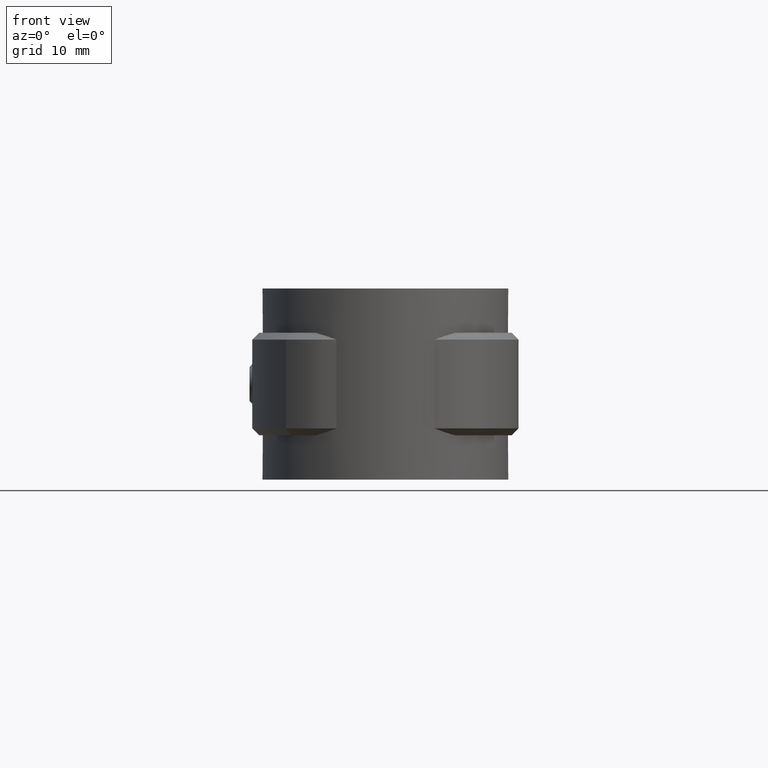
[diagram: clean part render]
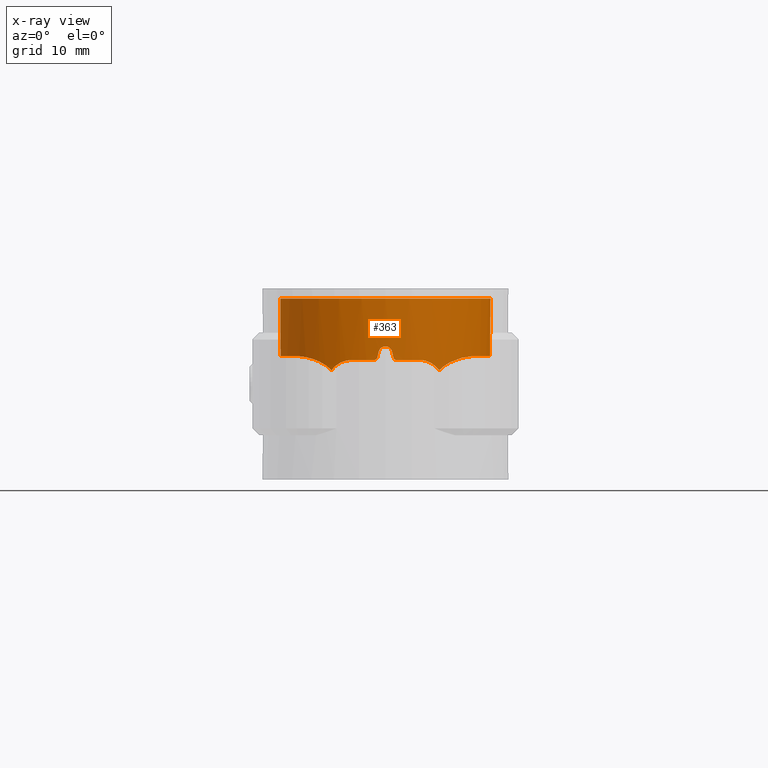
[diagram: x-ray — body ghosted, one internal face saturated and labeled with its STEP entity id]
A machine part, front view, then the same camera in x-ray: the body is ghosted and one INTERNAL B-rep face — a face not visible from any outside direction — is saturated and labeled: STEP entity #363.
In plain terms, the highlighted cylindrical surface (partial cylindrical patch) has radius 15.4 mm, axis along (0, 0, 1).
Its self-contained STEP definition (entity closure, byte-faithful):
#363 = ADVANCED_FACE( '', ( #689 ), #690, .T. );
#689 = FACE_OUTER_BOUND( '', #1386, .T. );
#690 = CYLINDRICAL_SURFACE( '', #1387, 15.4000000000000 );
#1386 = EDGE_LOOP( '', ( #2599, #2600, #2601, #2602, #2603, #2604, #2605, #2606, #2607, #2608, #2609, #2610, #2611, #2612, #2613, #2614 ) );
#1387 = AXIS2_PLACEMENT_3D( '', #2615, #2616, #2617 );
#2599 = ORIENTED_EDGE( '', *, *, #5970, .F. );
#2600 = ORIENTED_EDGE( '', *, *, #5971, .F. );
#2601 = ORIENTED_EDGE( '', *, *, #5972, .F. );
#2602 = ORIENTED_EDGE( '', *, *, #5973, .F. );
#2603 = ORIENTED_EDGE( '', *, *, #5974, .F. );
#2604 = ORIENTED_EDGE( '', *, *, #5975, .T. );
#2605 = ORIENTED_EDGE( '', *, *, #5976, .F. );
#2606 = ORIENTED_EDGE( '', *, *, #5977, .F. );
#2607 = ORIENTED_EDGE( '', *, *, #5978, .F. );
#2608 = ORIENTED_EDGE( '', *, *, #5979, .F. );
#2609 = ORIENTED_EDGE( '', *, *, #5980, .F. );
#2610 = ORIENTED_EDGE( '', *, *, #5981, .F. );
#2611 = ORIENTED_EDGE( '', *, *, #5982, .F. );
#2612 = ORIENTED_EDGE( '', *, *, #5983, .F. );
#2613 = ORIENTED_EDGE( '', *, *, #5984, .F. );
#2614 = ORIENTED_EDGE( '', *, *, #5985, .F. );
#2615 = CARTESIAN_POINT( '', ( 0.000000000000000, 0.000000000000000, 0.000000000000000 ) );
#2616 = DIRECTION( '', ( 0.000000000000000, 0.000000000000000, 1.00000000000000 ) );
#2617 = DIRECTION( '', ( 1.00000000000000, -6.12303176911189E-017, 0.000000000000000 ) );
#5970 = EDGE_CURVE( '', #6879, #6880, #6881, .T. );
#5971 = EDGE_CURVE( '', #6882, #6879, #6883, .T. );
#5972 = EDGE_CURVE( '', #6884, #6882, #6885, .T. );
#5973 = EDGE_CURVE( '', #6886, #6884, #6887, .T. );
#5974 = EDGE_CURVE( '', #6888, #6886, #6889, .F. );
#5975 = EDGE_CURVE( '', #6888, #6890, #6891, .T. );
#5976 = EDGE_CURVE( '', #6892, #6890, #6893, .T. );
#5977 = EDGE_CURVE( '', #6894, #6892, #6895, .T. );
#5978 = EDGE_CURVE( '', #6896, #6894, #6897, .T. );
#5979 = EDGE_CURVE( '', #6898, #6896, #6899, .T. );
#5980 = EDGE_CURVE( '', #6900, #6898, #6901, .T. );
#5981 = EDGE_CURVE( '', #6902, #6900, #6903, .T. );
#5982 = EDGE_CURVE( '', #6904, #6902, #6905, .T. );
#5983 = EDGE_CURVE( '', #6906, #6904, #6907, .T. );
#5984 = EDGE_CURVE( '', #6908, #6906, #6909, .T. );
#5985 = EDGE_CURVE( '', #6880, #6908, #6910, .T. );
#6879 = VERTEX_POINT( '', #8393 );
#6880 = VERTEX_POINT( '', #8394 );
#6881 = B_SPLINE_CURVE_WITH_KNOTS( '', 3, ( #8395, #8396, #8397, #8398, #8399, #8400, #8401, #8402, #8403, #8404 ), .UNSPECIFIED., .F., .F., ( 4, 2, 2, 2, 4 ), ( 0.00791598964132195, 0.00881788409759061, 0.00971977855385927, 0.0106216730101279, 0.0115235674663966 ), .UNSPECIFIED. );
#6882 = VERTEX_POINT( '', #8405 );
#6883 = B_SPLINE_CURVE_WITH_KNOTS( '', 3, ( #8406, #8407, #8408, #8409, #8410, #8411, #8412, #8413, #8414, #8415, #8416, #8417, #8418, #8419 ), .UNSPECIFIED., .F., .F., ( 4, 2, 2, 2, 2, 2, 4 ), ( 0.000000000000000, 0.00173168273084340, 0.00346336546168679, 0.00432920682710849, 0.00519504819253019, 0.00606088955795189, 0.00692673092337359 ), .UNSPECIFIED. );
#6884 = VERTEX_POINT( '', #8420 );
#6885 = B_SPLINE_CURVE_WITH_KNOTS( '', 3, ( #8421, #8422, #8423, #8424, #8425, #8426, #8427, #8428, #8429, #8430, #8431, #8432, #8433, #8434, #8435, #8436, #8437, #8438, #8439, #8440, #8441, #8442, #8443, #8444, #8445, #8446, #8447, #8448 ), .UNSPECIFIED., .F., .F., ( 4, 2, 2, 2, 2, 2, 2, 2, 2, 2, 2, 2, 2, 4 ), ( 0.000000000000000, 0.00341998212533285, 0.00512997318799927, 0.00683996425066569, 0.00854995531333212, 0.0102599463759985, 0.0136799285013314, 0.0153899195639978, 0.0170999106266642, 0.0188099016893306, 0.0205198927519971, 0.0239398748773299, 0.0256498659399963, 0.0273598570026628 ), .UNSPECIFIED. );
#6886 = VERTEX_POINT( '', #8449 );
#6887 = LINE( '', #8450, #8451 );
#6888 = VERTEX_POINT( '', #8452 );
#6889 = CIRCLE( '', #8453, 15.4000000000000 );
#6890 = VERTEX_POINT( '', #8454 );
#6891 = LINE( '', #8455, #8456 );
#6892 = VERTEX_POINT( '', #8457 );
#6893 = B_SPLINE_CURVE_WITH_KNOTS( '', 3, ( #8458, #8459, #8460, #8461, #8462, #8463, #8464, #8465, #8466, #8467, #8468, #8469, #8470, #8471, #8472, #8473, #8474, #8475, #8476, #8477, #8478, #8479, #8480, #8481, #8482, #8483, #8484, #8485 ), .UNSPECIFIED., .F., .F., ( 4, 2, 2, 2, 2, 2, 2, 2, 2, 2, 2, 2, 2, 4 ), ( 0.000000000000000, 0.00341998115958763, 0.00512997173938145, 0.00683996231917526, 0.00854995289896908, 0.0102599434787629, 0.0136799246383505, 0.0153899152181443, 0.0170999057979382, 0.0188098963777320, 0.0205198869575258, 0.0239398681171134, 0.0256498586969072, 0.0273598492767011 ), .UNSPECIFIED. );
#6894 = VERTEX_POINT( '', #8486 );
#6895 = B_SPLINE_CURVE_WITH_KNOTS( '', 3, ( #8487, #8488, #8489, #8490, #8491, #8492, #8493, #8494, #8495, #8496, #8497, #8498, #8499, #8500, #8501, #8502 ), .UNSPECIFIED., .F., .F., ( 4, 2, 2, 2, 2, 2, 2, 4 ), ( 0.0114627749049259, 0.0123276574817837, 0.0131925400586416, 0.0140574226354994, 0.0149223052123572, 0.0157871877892150, 0.0166520703660729, 0.0183818355197885 ), .UNSPECIFIED. );
#6896 = VERTEX_POINT( '', #8503 );
#6897 = B_SPLINE_CURVE_WITH_KNOTS( '', 3, ( #8504, #8505, #8506, #8507, #8508, #8509, #8510, #8511, #8512, #8513, #8514, #8515, #8516, #8517 ), .UNSPECIFIED., .F., .F., ( 4, 2, 2, 2, 2, 2, 4 ), ( 0.0111031675554028, 0.0115550570221312, 0.0120069464888597, 0.0129107254223165, 0.0138145043557733, 0.0142663938225017, 0.0147182832892301 ), .UNSPECIFIED. );
#6898 = VERTEX_POINT( '', #8518 );
#6899 = CIRCLE( '', #8519, 15.4000000000000 );
#6900 = VERTEX_POINT( '', #8520 );
#6901 = B_SPLINE_CURVE_WITH_KNOTS( '', 3, ( #8521, #8522, #8523, #8524, #8525, #8526 ), .UNSPECIFIED., .F., .F., ( 4, 2, 4 ), ( 0.00246264158216461, 0.00279888070868524, 0.00313511983520587 ), .UNSPECIFIED. );
#6902 = VERTEX_POINT( '', #8527 );
#6903 = ELLIPSE( '', #8528, 70.1556271315222, 15.4000000000000 );
#6904 = VERTEX_POINT( '', #8529 );
#6905 = B_SPLINE_CURVE_WITH_KNOTS( '', 3, ( #8530, #8531, #8532, #8533, #8534, #8535, #8536, #8537, #8538, #8539 ), .UNSPECIFIED., .F., .F., ( 4, 2, 2, 2, 4 ), ( 0.00178378666666278, 0.00245553190625587, 0.00312727714584896, 0.00379902238544205, 0.00447076762503513 ), .UNSPECIFIED. );
#6906 = VERTEX_POINT( '', #8540 );
#6907 = ELLIPSE( '', #8541, 70.1555913435267, 15.4000000000000 );
#6908 = VERTEX_POINT( '', #8542 );
#6909 = B_SPLINE_CURVE_WITH_KNOTS( '', 3, ( #8543, #8544, #8545, #8546, #8547, #8548 ), .UNSPECIFIED., .F., .F., ( 4, 2, 4 ), ( 0.000000000000000, 0.000336650316676344, 0.000673300633352688 ), .UNSPECIFIED. );
#6910 = CIRCLE( '', #8549, 15.4000000000000 );
#8393 = CARTESIAN_POINT( '', ( 7.87700636388655, -13.2330182023337, -10.5068029745768 ) );
#8394 = CARTESIAN_POINT( '', ( 5.00000000000000, -14.5657131648265, -9.00000000000000 ) );
#8395 = CARTESIAN_POINT( '', ( 7.87700636388652, -13.2330182023336, -10.5068029745767 ) );
#8396 = CARTESIAN_POINT( '', ( 7.71363110740018, -13.3302679691946, -10.2709850164835 ) );
#8397 = CARTESIAN_POINT( '', ( 7.52220537404209, -13.4399923453092, -10.0573023067330 ) );
#8398 = CARTESIAN_POINT( '', ( 7.10208840770406, -13.6666494862637, -9.68761377194824 ) );
#8399 = CARTESIAN_POINT( '', ( 6.86847156540302, -13.7861790864375, -9.52741114921785 ) );
#8400 = CARTESIAN_POINT( '', ( 6.37517207682076, -14.0211203703200, -9.26946254848415 ) );
#8401 = CARTESIAN_POINT( '', ( 6.11532449262093, -14.1368542315247, -9.17045578740684 ) );
#8402 = CARTESIAN_POINT( '', ( 5.56685684432593, -14.3616832609624, -9.03467365093940 ) );
#8403 = CARTESIAN_POINT( '', ( 5.28428559890868, -14.4681259077895, -8.99999999999998 ) );
#8404 = CARTESIAN_POINT( '', ( 5.00000000000000, -14.5657131648265, -8.99999999999997 ) );
#8405 = CARTESIAN_POINT( '', ( 12.6274120051663, -8.81524055552550, -8.45123182622543 ) );
#8406 = CARTESIAN_POINT( '', ( 12.6274120051663, -8.81524055552550, -8.45123182622543 ) );
#8407 = CARTESIAN_POINT( '', ( 12.2921835087103, -9.29543940137202, -8.46640589875318 ) );
#8408 = CARTESIAN_POINT( '', ( 11.9345917271948, -9.74949266599847, -8.51214687201750 ) );
#8409 = CARTESIAN_POINT( '', ( 11.1785738592952, -10.6078543264634, -8.66934439407290 ) );
#8410 = CARTESIAN_POINT( '', ( 10.7801391596403, -11.0120804295089, -8.78116952376868 ) );
#8411 = CARTESIAN_POINT( '', ( 10.1551330611052, -11.5806995226116, -9.01465162548256 ) );
#8412 = CARTESIAN_POINT( '', ( 9.94253435288115, -11.7635399192514, -9.10364407148822 ) );
#8413 = CARTESIAN_POINT( '', ( 9.51839311645741, -12.1092961509172, -9.30489986919365 ) );
#8414 = CARTESIAN_POINT( '', ( 9.30582768364358, -12.2731543091292, -9.41742948314349 ) );
#8415 = CARTESIAN_POINT( '', ( 8.88264050815757, -12.5828233388298, -9.67168894022724 ) );
#8416 = CARTESIAN_POINT( '', ( 8.67068931918931, -12.7294751156650, -9.81433545969121 ) );
#8417 = CARTESIAN_POINT( '', ( 8.26011978492007, -12.9996465770809, -10.1336652816724 ) );
#8418 = CARTESIAN_POINT( '', ( 8.06230731954148, -13.1227170764218, -10.3093051029673 ) );
#8419 = CARTESIAN_POINT( '', ( 7.87700636388627, -13.2330182023337, -10.5068029745765 ) );
#8420 = CARTESIAN_POINT( '', ( 5.95833333333334, 14.2006430801175, -8.45319646491126 ) );
#8421 = CARTESIAN_POINT( '', ( 5.95833333333334, 14.2006430801175, -8.45319646491129 ) );
#8422 = CARTESIAN_POINT( '', ( 7.02258857492107, 13.7541008041550, -8.45487795665789 ) );
#8423 = CARTESIAN_POINT( '', ( 8.01860178360296, 13.1972457551556, -8.45534853088447 ) );
#8424 = CARTESIAN_POINT( '', ( 9.41332867223213, 12.2014573240259, -8.45327878405263 ) );
#8425 = CARTESIAN_POINT( '', ( 9.86365149342150, 11.8405721295307, -8.45225625596894 ) );
#8426 = CARTESIAN_POINT( '', ( 10.7193355037959, 11.0718840083952, -8.45103312457521 ) );
#8427 = CARTESIAN_POINT( '', ( 11.1221666684703, 10.6668390790221, -8.45115105739451 ) );
#8428 = CARTESIAN_POINT( '', ( 11.8793245513676, 9.81660305514381, -8.45202092970010 ) );
#8429 = CARTESIAN_POINT( '', ( 12.2336476014598, 9.37140888677848, -8.45262953602700 ) );
#8430 = CARTESIAN_POINT( '', ( 12.8934693814688, 8.44060930673962, -8.45325263247384 ) );
#8431 = CARTESIAN_POINT( '', ( 13.2002425773149, 7.95265342036169, -8.45326284490383 ) );
#8432 = CARTESIAN_POINT( '', ( 14.0352308622093, 6.44179297570785, -8.45235870297212 ) );
#8433 = CARTESIAN_POINT( '', ( 14.4710174486937, 5.38987714239228, -8.45070154326673 ) );
#8434 = CARTESIAN_POINT( '', ( 14.9481487368161, 3.74674922361253, -8.45203183203909 ) );
#8435 = CARTESIAN_POINT( '', ( 15.0778698080782, 3.18579389180562, -8.45272575783565 ) );
#8436 = CARTESIAN_POINT( '', ( 15.2736458091991, 2.05114220997874, -8.45353397626926 ) );
#8437 = CARTESIAN_POINT( '', ( 15.3389737376012, 1.48327355388032, -8.45364108899972 ) );
#8438 = CARTESIAN_POINT( '', ( 15.4066272505933, 0.346485958933440, -8.45315387062256 ) );
#8439 = CARTESIAN_POINT( '', ( 15.4089471624124, -0.222433075056289, -8.45256123293249 ) );
#8440 = CARTESIAN_POINT( '', ( 15.3503068302420, -1.36132631808884, -8.45147141467651 ) );
#8441 = CARTESIAN_POINT( '', ( 15.2890404182553, -1.93314060817786, -8.45104877842965 ) );
#8442 = CARTESIAN_POINT( '', ( 15.0083466307506, -3.63822614736431, -8.45194638195861 ) );
#8443 = CARTESIAN_POINT( '', ( 14.6985463037198, -4.73420338375863, -8.45374932821839 ) );
#8444 = CARTESIAN_POINT( '', ( 14.0554696654127, -6.31892069621153, -8.45321234892426 ) );
#8445 = CARTESIAN_POINT( '', ( 13.8106599874058, -6.83801053354464, -8.45262425036877 ) );
#8446 = CARTESIAN_POINT( '', ( 13.2604374484016, -7.85197529425727, -8.45143870822935 ) );
#8447 = CARTESIAN_POINT( '', ( 12.9577374254450, -8.34206513264670, -8.45085167244468 ) );
#8448 = CARTESIAN_POINT( '', ( 12.6274120051663, -8.81524055552550, -8.45123182622542 ) );
#8449 = CARTESIAN_POINT( '', ( 5.95833333333333, 14.2006430801175, 0.000000000000000 ) );
#8450 = CARTESIAN_POINT( '', ( 5.95833333333334, 14.2006430801175, 0.000000000000000 ) );
#8451 = VECTOR( '', #11999, 1000.00000000000 );
#8452 = CARTESIAN_POINT( '', ( -5.95833333333334, 14.2006430801175, 0.000000000000000 ) );
#8453 = AXIS2_PLACEMENT_3D( '', #12000, #12001, #12002 );
#8454 = CARTESIAN_POINT( '', ( -5.95833333333333, 14.2006430801175, -8.45319646491129 ) );
#8455 = CARTESIAN_POINT( '', ( -5.95833333333333, 14.2006430801175, 0.000000000000000 ) );
#8456 = VECTOR( '', #12003, 1000.00000000000 );
#8457 = CARTESIAN_POINT( '', ( -12.6274120051665, -8.81524055552555, -8.45123182622562 ) );
#8458 = CARTESIAN_POINT( '', ( -12.6274120051663, -8.81524055552550, -8.45123182622542 ) );
#8459 = CARTESIAN_POINT( '', ( -13.2880625537878, -7.86889012795221, -8.45047151899991 ) );
#8460 = CARTESIAN_POINT( '', ( -13.8320657418724, -6.86580128022411, -8.45301130788258 ) );
#8461 = CARTESIAN_POINT( '', ( -14.4783490337546, -5.27861030324547, -8.45357253429532 ) );
#8462 = CARTESIAN_POINT( '', ( -14.6659697177332, -4.73287455637441, -8.45335112496146 ) );
#8463 = CARTESIAN_POINT( '', ( -14.9781308831095, -3.62579157926694, -8.45238263896636 ) );
#8464 = CARTESIAN_POINT( '', ( -15.1020078310141, -3.06812760949859, -8.45164909205877 ) );
#8465 = CARTESIAN_POINT( '', ( -15.2873078671033, -1.94480480577863, -8.45105211814681 ) );
#8466 = CARTESIAN_POINT( '', ( -15.3487262067477, -1.37914537117791, -8.45145621025229 ) );
#8467 = CARTESIAN_POINT( '', ( -15.4086970316327, -0.239778881260354, -8.45254284321980 ) );
#8468 = CARTESIAN_POINT( '', ( -15.4070699653256, 0.336595363875858, -8.45314819376114 ) );
#8469 = CARTESIAN_POINT( '', ( -15.3049524540745, 2.05981450626105, -8.45389105113858 ) );
#8470 = CARTESIAN_POINT( '', ( -15.1108416346634, 3.18175797266485, -8.45250043596708 ) );
#8471 = CARTESIAN_POINT( '', ( -14.6355907588763, 4.82542877004916, -8.45115306269195 ) );
#8472 = CARTESIAN_POINT( '', ( -14.4453125376356, 5.36883487297288, -8.45119115142090 ) );
#8473 = CARTESIAN_POINT( '', ( -14.0041384417046, 6.43238281733860, -8.45205742692973 ) );
#8474 = CARTESIAN_POINT( '', ( -13.7557451121938, 6.94720758233693, -8.45266000126185 ) );
#8475 = CARTESIAN_POINT( '', ( -13.2051545921950, 7.94406123969046, -8.45325885144637 ) );
#8476 = CARTESIAN_POINT( '', ( -12.9029525509172, 8.42608717518106, -8.45325661037708 ) );
#8477 = CARTESIAN_POINT( '', ( -12.2445074777150, 9.35719863223776, -8.45264461782251 ) );
#8478 = CARTESIAN_POINT( '', ( -11.8870226966692, 9.80767465812644, -8.45203119249943 ) );
#8479 = CARTESIAN_POINT( '', ( -10.7382174158235, 11.0985517025260, -8.45070713265521 ) );
#8480 = CARTESIAN_POINT( '', ( -9.89046554947290, 11.8591160122652, -8.45255757031076 ) );
#8481 = CARTESIAN_POINT( '', ( -8.49977279143537, 12.8545263560504, -8.45464090099667 ) );
#8482 = CARTESIAN_POINT( '', ( -8.01536757478159, 13.1623174372788, -8.45502016486444 ) );
#8483 = CARTESIAN_POINT( '', ( -7.00828448173800, 13.7250379344315, -8.45471785828141 ) );
#8484 = CARTESIAN_POINT( '', ( -6.49045992937246, 13.9773723721048, -8.45403720916550 ) );
#8485 = CARTESIAN_POINT( '', ( -5.95833333333334, 14.2006430801175, -8.45319646491128 ) );
#8486 = CARTESIAN_POINT( '', ( -7.87700636388640, -13.2330182023336, -10.5068029745764 ) );
#8487 = CARTESIAN_POINT( '', ( -7.87700636388638, -13.2330182023336, -10.5068029745764 ) );
#8488 = CARTESIAN_POINT( '', ( -8.06328749176426, -13.1221336250339, -10.3082604136557 ) );
#8489 = CARTESIAN_POINT( '', ( -8.26169023353061, -12.9986058602927, -10.1324669438878 ) );
#8490 = CARTESIAN_POINT( '', ( -8.66847515869258, -12.7309394095322, -9.81603449562980 ) );
#8491 = CARTESIAN_POINT( '', ( -8.87768020061598, -12.5863404403090, -9.67487813626119 ) );
#8492 = CARTESIAN_POINT( '', ( -9.30228234473857, -12.2758590168889, -9.41935479486324 ) );
#8493 = CARTESIAN_POINT( '', ( -9.51641289651037, -12.1108209602823, -9.30595199782985 ) );
#8494 = CARTESIAN_POINT( '', ( -9.93847682772325, -11.7669357563339, -9.10545846183769 ) );
#8495 = CARTESIAN_POINT( '', ( -10.1475279674673, -11.5872898890611, -9.01779370096184 ) );
#8496 = CARTESIAN_POINT( '', ( -10.5599813586691, -11.2126894422448, -8.86312616278086 ) );
#8497 = CARTESIAN_POINT( '', ( -10.7633923906275, -11.0177349555489, -8.79614543878864 ) );
#8498 = CARTESIAN_POINT( '', ( -11.1633779321647, -10.6122614201215, -8.68041910018485 ) );
#8499 = CARTESIAN_POINT( '', ( -11.3605801225952, -10.4009954121077, -8.63163149610047 ) );
#8500 = CARTESIAN_POINT( '', ( -11.9338215246101, -9.75078709424074, -8.51204931449252 ) );
#8501 = CARTESIAN_POINT( '', ( -12.2927691286990, -9.29460052864596, -8.46637939074362 ) );
#8502 = CARTESIAN_POINT( '', ( -12.6274120051663, -8.81524055552550, -8.45123182622542 ) );
#8503 = CARTESIAN_POINT( '', ( -5.00000000000005, -14.5657131648265, -9.00000000000000 ) );
#8504 = CARTESIAN_POINT( '', ( -5.00000000000005, -14.5657131648265, -8.99999999999997 ) );
#8505 = CARTESIAN_POINT( '', ( -5.14266518533405, -14.5167402159157, -8.99999999999997 ) );
#8506 = CARTESIAN_POINT( '', ( -5.28442171611004, -14.4657367131857, -9.00869052110793 ) );
#8507 = CARTESIAN_POINT( '', ( -5.56613274384141, -14.3596942100742, -9.04317612448258 ) );
#8508 = CARTESIAN_POINT( '', ( -5.70674627291903, -14.3043651350686, -9.06920781432546 ) );
#8509 = CARTESIAN_POINT( '', ( -6.11670607713732, -14.1362359392194, -9.17099582464046 ) );
#8510 = CARTESIAN_POINT( '', ( -6.37680899061101, -14.0203998939251, -9.27004321889414 ) );
#8511 = CARTESIAN_POINT( '', ( -6.87227363429511, -13.7843085130769, -9.52967758605864 ) );
#8512 = CARTESIAN_POINT( '', ( -7.10383260423252, -13.6657282319910, -9.68900849020440 ) );
#8513 = CARTESIAN_POINT( '', ( -7.41779380163528, -13.4963134433563, -9.96549425795324 ) );
#8514 = CARTESIAN_POINT( '', ( -7.51741526624407, -13.4409921613529, -10.0642766243227 ) );
#8515 = CARTESIAN_POINT( '', ( -7.70629715336586, -13.3335961672286, -10.2760207502714 ) );
#8516 = CARTESIAN_POINT( '', ( -7.79559770652250, -13.2814770272461, -10.3892966657048 ) );
#8517 = CARTESIAN_POINT( '', ( -7.87700636388640, -13.2330182023336, -10.5068029745764 ) );
#8518 = CARTESIAN_POINT( '', ( -1.65000000000003, -15.3113519977826, -9.00000000000000 ) );
#8519 = AXIS2_PLACEMENT_3D( '', #12004, #12005, #12006 );
#8520 = CARTESIAN_POINT( '', ( -1.16219512100914, -15.3560835664795, -8.60975609337373 ) );
#8521 = CARTESIAN_POINT( '', ( -1.16219512100915, -15.3560835664795, -8.60975609337372 ) );
#8522 = CARTESIAN_POINT( '', ( -1.18681606530338, -15.3542201785128, -8.71918251684514 ) );
#8523 = CARTESIAN_POINT( '', ( -1.25035919989654, -15.3494072868580, -8.82065005761855 ) );
#8524 = CARTESIAN_POINT( '', ( -1.42521987122473, -15.3341595956636, -8.96043796788046 ) );
#8525 = CARTESIAN_POINT( '', ( -1.53696057122674, -15.3235334862300, -8.99999999999994 ) );
#8526 = CARTESIAN_POINT( '', ( -1.65000000000003, -15.3113519977826, -8.99999999999994 ) );
#8527 = CARTESIAN_POINT( '', ( -0.975610000000025, -15.3690658508544, -7.78048800000004 ) );
#8528 = AXIS2_PLACEMENT_3D( '', #12007, #12008, #12009 );
#8529 = CARTESIAN_POINT( '', ( 0.975609757981813, -15.3690658662175, -7.78048781325256 ) );
#8530 = CARTESIAN_POINT( '', ( 0.975609757981817, -15.3690658662175, -7.78048781325255 ) );
#8531 = CARTESIAN_POINT( '', ( 0.926365760738391, -15.3721918157482, -7.56162569231961 ) );
#8532 = CARTESIAN_POINT( '', ( 0.799809944244704, -15.3802148220261, -7.35923558861949 ) );
#8533 = CARTESIAN_POINT( '', ( 0.449647752163582, -15.3944314873125, -7.07908095945545 ) );
#8534 = CARTESIAN_POINT( '', ( 0.224336470176211, -15.3999999763035, -7.00000038392574 ) );
#8535 = CARTESIAN_POINT( '', ( -0.224333216786291, -15.4000000236963, -6.99999960921014 ) );
#8536 = CARTESIAN_POINT( '', ( -0.449668060743628, -15.3944308006599, -7.07909267222163 ) );
#8537 = CARTESIAN_POINT( '', ( -0.799813833494557, -15.3802145262317, -7.35924291610517 ) );
#8538 = CARTESIAN_POINT( '', ( -0.926375497112043, -15.3721911984734, -7.56166788060234 ) );
#8539 = CARTESIAN_POINT( '', ( -0.975610000000027, -15.3690658508544, -7.78048800000004 ) );
#8540 = CARTESIAN_POINT( '', ( 1.16219499999999, -15.3560835756379, -8.60975599999999 ) );
#8541 = AXIS2_PLACEMENT_3D( '', #12010, #12011, #12012 );
#8542 = CARTESIAN_POINT( '', ( 1.64999999999995, -15.3113519977826, -9.00000000000000 ) );
#8543 = CARTESIAN_POINT( '', ( 1.64999999785397, -15.3113519980138, -8.99999999999995 ) );
#8544 = CARTESIAN_POINT( '', ( 1.53682949358445, -15.3235476115577, -8.99999999999995 ) );
#8545 = CARTESIAN_POINT( '', ( 1.42678355383116, -15.3340215838700, -8.96158202978573 ) );
#8546 = CARTESIAN_POINT( '', ( 1.24936447755815, -15.3494956805196, -8.81996056886150 ) );
#8547 = CARTESIAN_POINT( '', ( 1.18716729814690, -15.3541935963406, -8.72074399398835 ) );
#8548 = CARTESIAN_POINT( '', ( 1.16219499999999, -15.3560835756379, -8.60975599999999 ) );
#8549 = AXIS2_PLACEMENT_3D( '', #12013, #12014, #12015 );
#11999 = DIRECTION( '', ( 0.000000000000000, 0.000000000000000, -1.00000000000000 ) );
#12000 = CARTESIAN_POINT( '', ( 0.000000000000000, 0.000000000000000, 0.000000000000000 ) );
#12001 = DIRECTION( '', ( 0.000000000000000, 0.000000000000000, -1.00000000000000 ) );
#12002 = DIRECTION( '', ( -1.00000000000000, 0.000000000000000, 0.000000000000000 ) );
#12003 = DIRECTION( '', ( 0.000000000000000, 0.000000000000000, -1.00000000000000 ) );
#12004 = CARTESIAN_POINT( '', ( 0.000000000000000, 0.000000000000000, -9.00000000000000 ) );
#12005 = DIRECTION( '', ( 6.12303176911189E-017, -3.05720745347993E-016, -1.00000000000000 ) );
#12006 = DIRECTION( '', ( 0.000000000000000, 1.00000000000000, -3.05720745347993E-016 ) );
#12007 = CARTESIAN_POINT( '', ( 0.000000000000000, 0.000000000000000, -3.44443890776447 ) );
#12008 = DIRECTION( '', ( 0.975609806487711, -1.18038009681476E-016, -0.219511971165610 ) );
#12009 = DIRECTION( '', ( -0.219511971165610, 2.65585237103421E-017, -0.975609806487711 ) );
#12010 = CARTESIAN_POINT( '', ( 0.000000000000000, 0.000000000000000, -3.44444212055030 ) );
#12011 = DIRECTION( '', ( -0.975609781292647, -1.61807527429124E-017, -0.219512083143762 ) );
#12012 = DIRECTION( '', ( 0.219512083143762, 3.64066741594651E-018, -0.975609781292647 ) );
#12013 = CARTESIAN_POINT( '', ( 0.000000000000000, 0.000000000000000, -9.00000000000000 ) );
#12014 = DIRECTION( '', ( 6.12303176911189E-017, -3.05720745347993E-016, -1.00000000000000 ) );
#12015 = DIRECTION( '', ( 0.000000000000000, 1.00000000000000, -3.05720745347993E-016 ) );